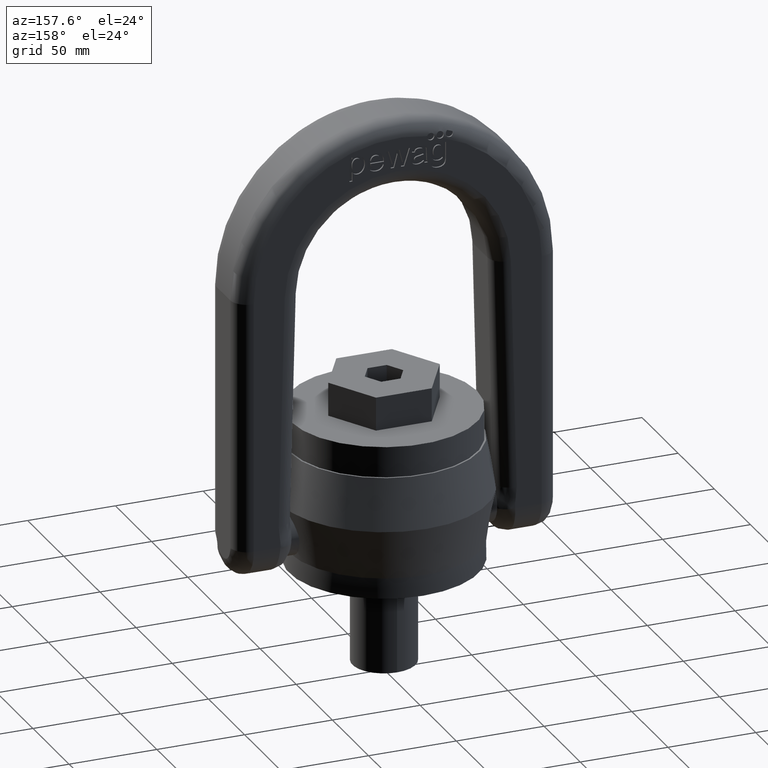
[diagram: clean part render]
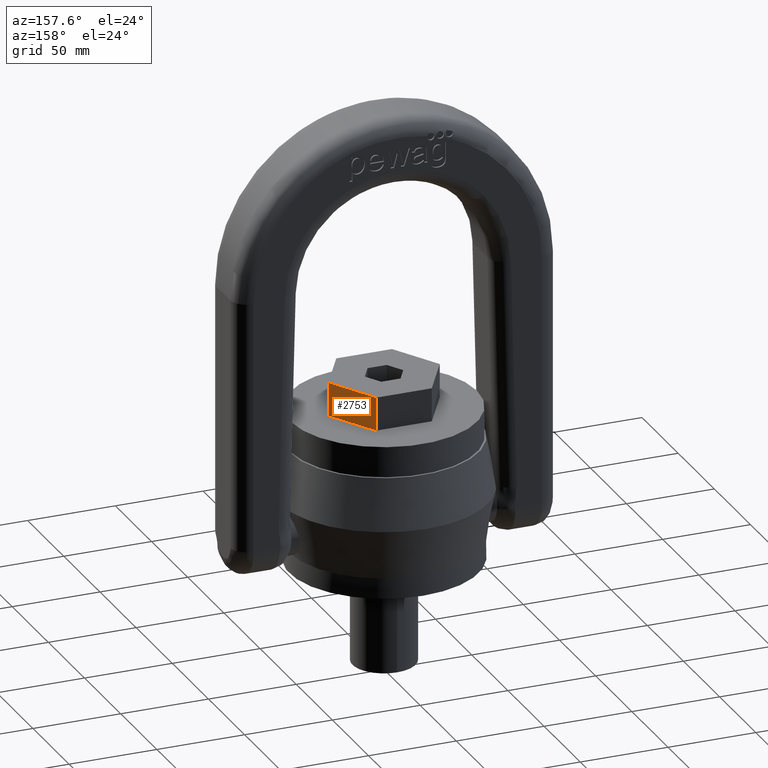
[diagram: same view with one face highlighted and labeled with its STEP entity id]
A machine part, auxiliary view. The second image highlights one B-rep face of the part: STEP entity #2753.
In plain terms, the highlighted planar face has unit normal (-0.866, -0.5, 0).
Its self-contained STEP definition (entity closure, byte-faithful):
#1760=LINE('',#6630,#2042);
#1768=LINE('',#6646,#2050);
#1770=LINE('',#6650,#2052);
#1771=LINE('',#6652,#2053);
#2042=VECTOR('',#5849,1.);
#2050=VECTOR('',#5863,1.);
#2052=VECTOR('',#5867,1.);
#2053=VECTOR('',#5868,1.);
#2417=FACE_OUTER_BOUND('',#3083,.T.);
#2634=PLANE('',#5626);
#2753=ADVANCED_FACE('',(#2417),#2634,.F.);
#3083=EDGE_LOOP('',(#3371,#3372,#3373,#3374));
#3371=ORIENTED_EDGE('',*,*,#4956,.T.);
#3372=ORIENTED_EDGE('',*,*,#4966,.F.);
#3373=ORIENTED_EDGE('',*,*,#4967,.F.);
#3374=ORIENTED_EDGE('',*,*,#4964,.T.);
#4556=VERTEX_POINT('',#6629);
#4557=VERTEX_POINT('',#6631);
#4562=VERTEX_POINT('',#6647);
#4563=VERTEX_POINT('',#6651);
#4956=EDGE_CURVE('',#4557,#4556,#1760,.T.);
#4964=EDGE_CURVE('',#4562,#4557,#1768,.T.);
#4966=EDGE_CURVE('',#4563,#4556,#1770,.T.);
#4967=EDGE_CURVE('',#4562,#4563,#1771,.T.);
#5626=AXIS2_PLACEMENT_3D('',#6653,#5869,#5870);
#5849=DIRECTION('',(-0.5,0.866025403784439,0.));
#5863=DIRECTION('',(0.,0.,-1.));
#5867=DIRECTION('',(0.,0.,-1.));
#5868=DIRECTION('',(-0.5,0.866025403784439,0.));
#5869=DIRECTION('',(-0.866025403784439,-0.5,0.));
#5870=DIRECTION('',(0.5,-0.866025403784439,0.));
#6629=CARTESIAN_POINT('',(15.8771324027147,27.5,87.));
#6630=CARTESIAN_POINT('',(31.7542648054294,0.,87.));
#6631=CARTESIAN_POINT('',(31.7542648054294,0.,87.));
#6646=CARTESIAN_POINT('',(31.7542648054294,0.,106.));
#6647=CARTESIAN_POINT('',(31.7542648054294,0.,106.));
#6650=CARTESIAN_POINT('',(15.8771324027147,27.5,106.));
#6651=CARTESIAN_POINT('',(15.8771324027147,27.5,106.));
#6652=CARTESIAN_POINT('',(31.7542648054294,0.,106.));
#6653=CARTESIAN_POINT('',(31.7542648054294,0.,106.));